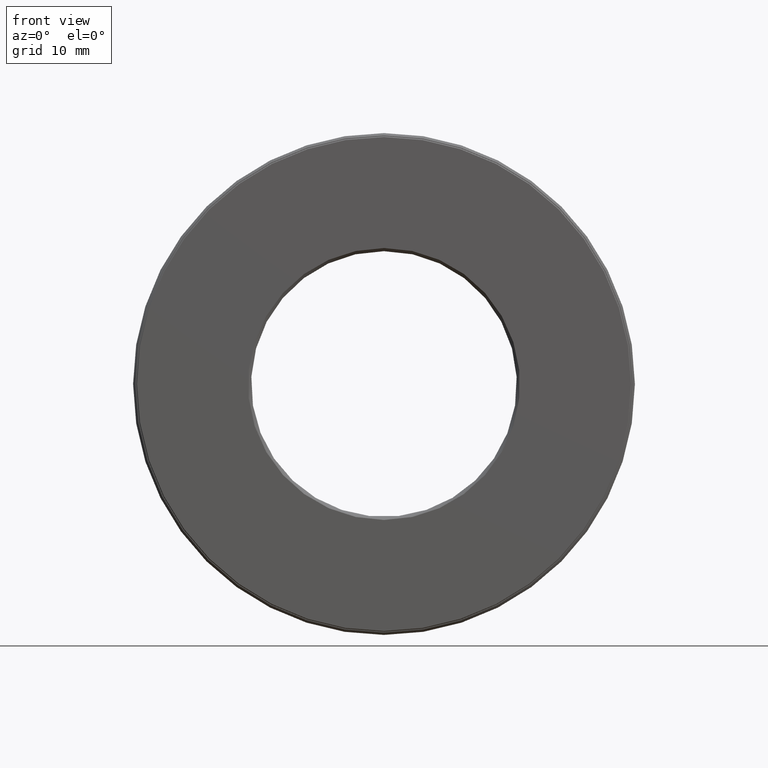
[diagram: clean part render]
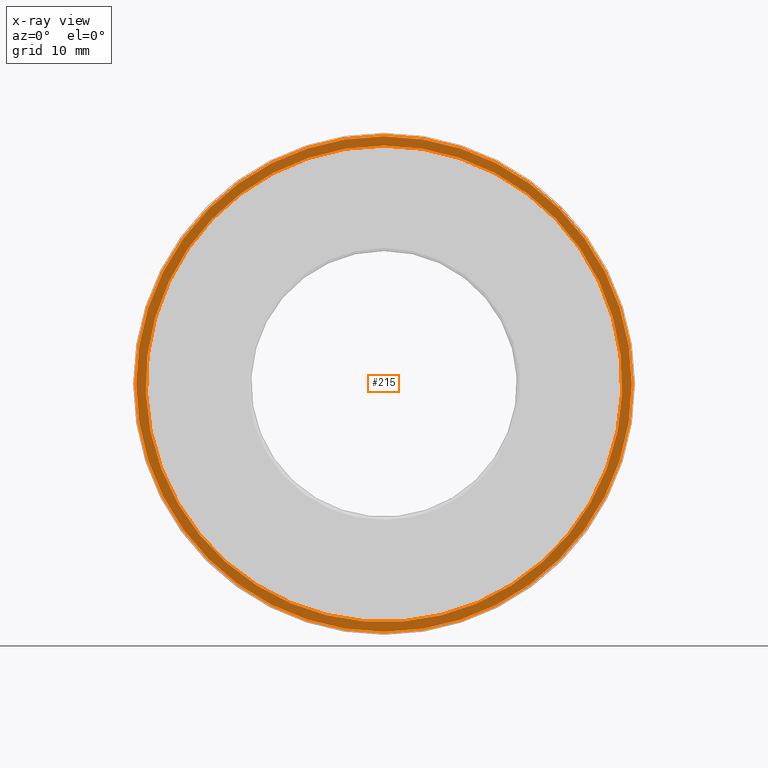
[diagram: x-ray — body ghosted, one internal face saturated and labeled with its STEP entity id]
A machine part, front view, then the same camera in x-ray: the body is ghosted and one INTERNAL B-rep face — a face not visible from any outside direction — is saturated and labeled: STEP entity #215.
In plain terms, the highlighted planar face has unit normal (-0, 1, 0).
Its self-contained STEP definition (entity closure, byte-faithful):
#6 = CIRCLE ( 'NONE', #118, 1.513749999999999900 ) ;
#70 = DIRECTION ( 'NONE',  ( -0.0000000000000000000, 1.000000000000000000, 0.0000000000000000000 ) ) ;
#74 = DIRECTION ( 'NONE',  ( 0.0000000000000000000, 0.0000000000000000000, 1.000000000000000000 ) ) ;
#83 = AXIS2_PLACEMENT_3D ( 'NONE', #396, #70, #74 ) ;
#90 = DIRECTION ( 'NONE',  ( -0.0000000000000000000, 1.000000000000000000, -0.0000000000000000000 ) ) ;
#97 = EDGE_LOOP ( 'NONE', ( #597 ) ) ;
#118 = AXIS2_PLACEMENT_3D ( 'NONE', #250, #576, #490 ) ;
#191 = CARTESIAN_POINT ( 'NONE',  ( 0.0000000000000000000, 1.089999999999999900, 1.573749999999999800 ) ) ;
#200 = FACE_OUTER_BOUND ( 'NONE', #330, .T. ) ;
#210 = EDGE_CURVE ( 'NONE', #349, #349, #6, .T. ) ;
#215 = ADVANCED_FACE ( 'NONE', ( #200, #418 ), #306, .F. ) ;
#221 = DIRECTION ( 'NONE',  ( 0.0000000000000000000, 0.0000000000000000000, 1.000000000000000000 ) ) ;
#250 = CARTESIAN_POINT ( 'NONE',  ( 0.0000000000000000000, 1.089999999999999900, 0.0000000000000000000 ) ) ;
#290 = ORIENTED_EDGE ( 'NONE', *, *, #370, .F. ) ;
#306 = PLANE ( 'NONE',  #83 ) ;
#330 = EDGE_LOOP ( 'NONE', ( #290 ) ) ;
#336 = CIRCLE ( 'NONE', #585, 1.573749999999999800 ) ;
#349 = VERTEX_POINT ( 'NONE', #516 ) ;
#370 = EDGE_CURVE ( 'NONE', #523, #523, #336, .T. ) ;
#396 = CARTESIAN_POINT ( 'NONE',  ( 0.0000000000000000000, 1.089999999999999900, 0.0000000000000000000 ) ) ;
#418 = FACE_BOUND ( 'NONE', #97, .T. ) ;
#490 = DIRECTION ( 'NONE',  ( 0.0000000000000000000, 0.0000000000000000000, 1.000000000000000000 ) ) ;
#511 = CARTESIAN_POINT ( 'NONE',  ( 0.0000000000000000000, 1.089999999999999900, 0.0000000000000000000 ) ) ;
#516 = CARTESIAN_POINT ( 'NONE',  ( 0.0000000000000000000, 1.089999999999999900, 1.513749999999999900 ) ) ;
#523 = VERTEX_POINT ( 'NONE', #191 ) ;
#576 = DIRECTION ( 'NONE',  ( -0.0000000000000000000, 1.000000000000000000, -0.0000000000000000000 ) ) ;
#585 = AXIS2_PLACEMENT_3D ( 'NONE', #511, #90, #221 ) ;
#597 = ORIENTED_EDGE ( 'NONE', *, *, #210, .T. ) ;